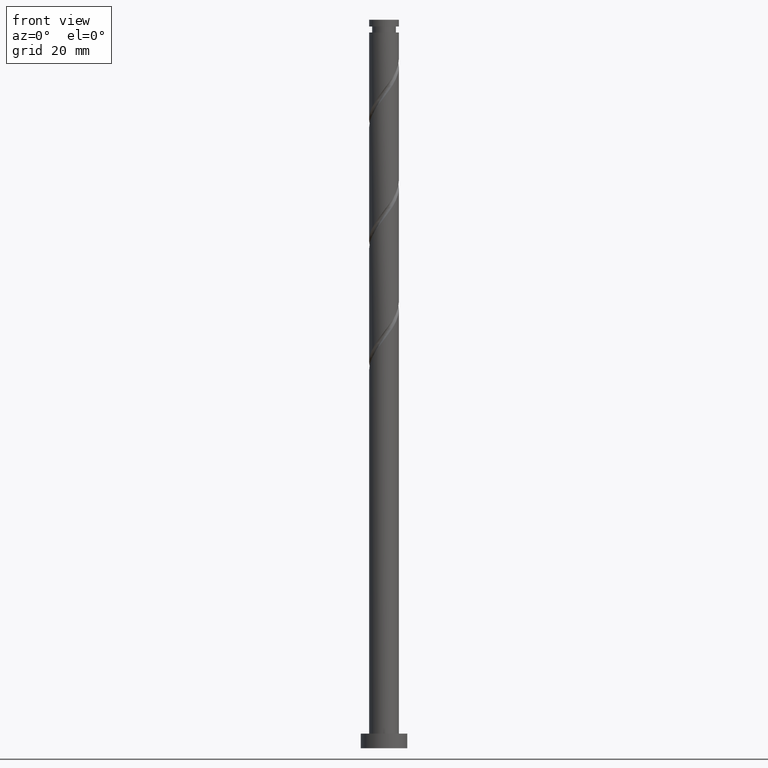
[diagram: clean part render]
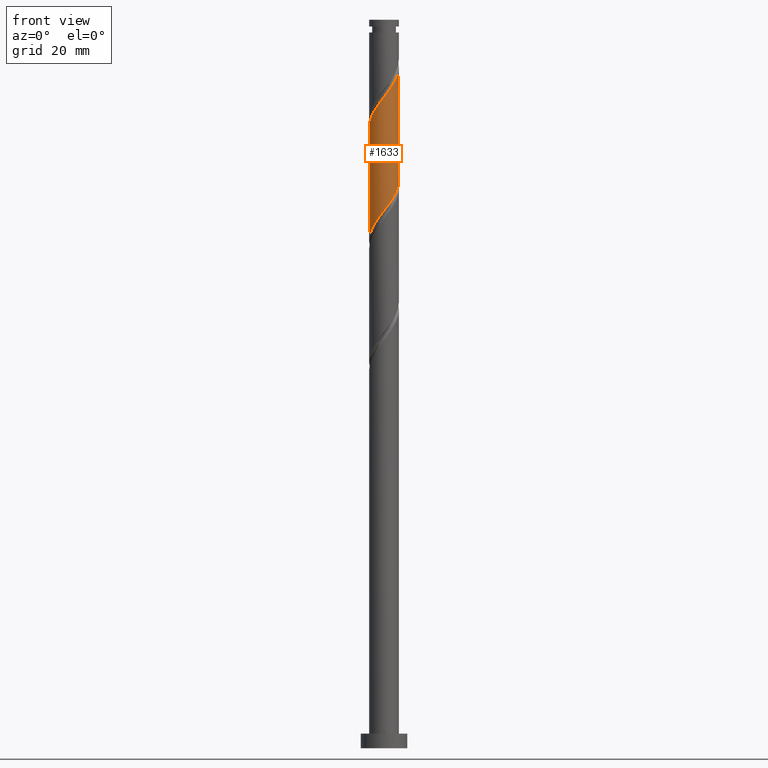
[diagram: same view with one face highlighted and labeled with its STEP entity id]
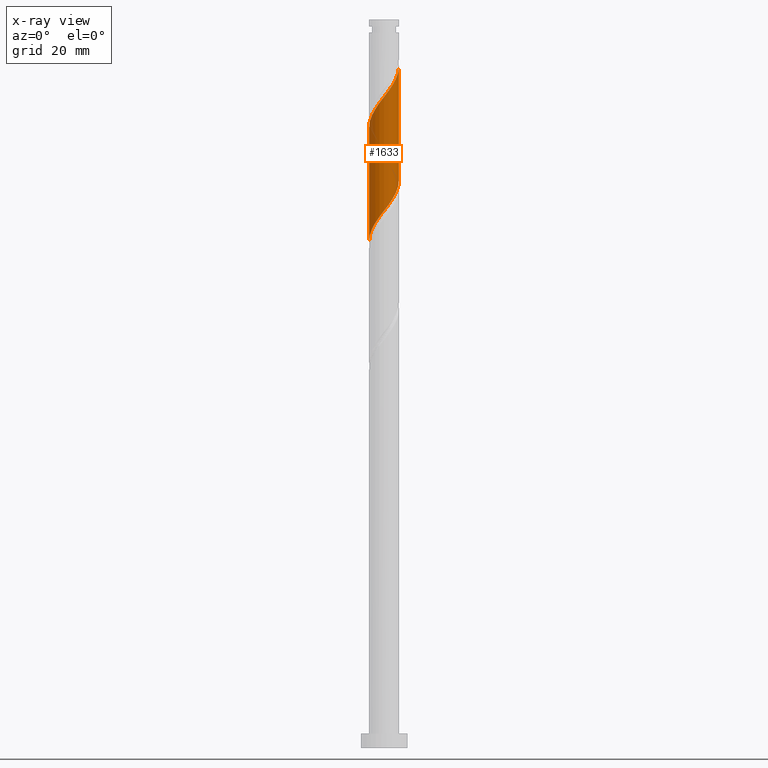
[diagram: x-ray of the same camera — body ghosted, the highlighted face saturated]
A machine part, front view. The second image highlights one B-rep face of the part: STEP entity #1633.
The next image is the same camera in x-ray: the body ghosted, the highlighted face saturated — about 0% of this face is hidden behind the body in this view.
In plain terms, the highlighted cylindrical surface (edge-blend (fillet) strip) has radius 5.1 mm, axis along (-0, -0, -1).
Its self-contained STEP definition (entity closure, byte-faithful):
#3 = CARTESIAN_POINT ( 'NONE',  ( -2.554633079098586279, -4.414051407853715858, 220.0052858552500084 ) ) ;
#35 = EDGE_LOOP ( 'NONE', ( #883, #595, #851, #866 ) ) ;
#48 = CARTESIAN_POINT ( 'NONE',  ( -5.033095136840517902, -0.8233792221767159969, 175.1334909834551468 ) ) ;
#55 = CARTESIAN_POINT ( 'NONE',  ( -3.701410836239909852, -3.562728028154290794, 179.1399012398653952 ) ) ;
#78 = CARTESIAN_POINT ( 'NONE',  ( -2.181496098819616591, -4.609888802437081878, 181.5437473937115556 ) ) ;
#98 = CARTESIAN_POINT ( 'NONE',  ( -5.100000000000001421, 0.000000000000000000, 250.0000000000000000 ) ) ;
#147 = CARTESIAN_POINT ( 'NONE',  ( 4.689794993926371447, -2.003951824506580159, 231.2232345731987095 ) ) ;
#173 = CARTESIAN_POINT ( 'NONE',  ( -5.034708694974688648, -1.022341204283935712, 214.3963114962756435 ) ) ;
#182 = CARTESIAN_POINT ( 'NONE',  ( 0.4080201137038932391, -5.121229614852623513, 224.0116961116602283 ) ) ;
#203 = VECTOR ( 'NONE', #1481, 1000.000000000000000 ) ;
#211 = CARTESIAN_POINT ( 'NONE',  ( -5.099999999999998757, 4.217574666386874631E-15, 174.0575667055008182 ) ) ;
#258 = DIRECTION ( 'NONE',  ( -0.000000000000000000, -0.000000000000000000, -1.000000000000000000 ) ) ;
#260 = EDGE_CURVE ( 'NONE', #338, #1412, #420, .T. ) ;
#320 = CARTESIAN_POINT ( 'NONE',  ( -5.083890084957959132, -0.4050451876843533805, 213.5950294449936280 ) ) ;
#337 = CARTESIAN_POINT ( 'NONE',  ( 1.424048439806746780, -4.897150808488948570, 186.3514397014038479 ) ) ;
#338 = VERTEX_POINT ( 'NONE', #1206 ) ;
#339 = CARTESIAN_POINT ( 'NONE',  ( 5.100000000000001421, 6.245698675651502811E-16, 250.0000000000000000 ) ) ;
#387 = LINE ( 'NONE', #98, #1654 ) ;
#417 = DIRECTION ( 'NONE',  ( -1.000000000000000000, 0.000000000000000000, 0.000000000000000000 ) ) ;
#420 =( BOUNDED_CURVE ( )  B_SPLINE_CURVE ( 2, ( #468, #1040, #763, #1329, #900, #1212, #1624, #779, #786, #1055, #1071, #1596, #337, #1354, #1321, #1480, #1345, #482, #78, #893, #1464, #55, #636, #1049, #1197, #1456, #48, #756, #211 ),
 .UNSPECIFIED., .F., .T. ) 
 B_SPLINE_CURVE_WITH_KNOTS ( ( 3, 2, 2, 2, 2, 2, 2, 2, 2, 2, 2, 2, 2, 2, 3 ),
 ( 0.5545271625973832164, 0.5576923076923077094, 0.5673076923076922906, 0.5769230769230768718, 0.5865384615384615641, 0.5961538461538461453, 0.6057692307692307265, 0.6153846153846154188, 0.6250000000000000000, 0.6346153846153845812, 0.6442307692307692735, 0.6538461538461538547, 0.6634615384615384359, 0.6730769230769231282, 0.6795271625973834384 ),
 .UNSPECIFIED. ) 
 CURVE ( )  GEOMETRIC_REPRESENTATION_ITEM ( )  RATIONAL_B_SPLINE_CURVE ( ( 0.9061636035682766321, 0.9069090390690652814, 0.9090909090909219392, 0.9024626128164254801, 0.9090909090909219392, 0.9024626128164254801, 0.9090909090909219392, 0.9024626128164254801, 0.9090909090909219392, 0.9024626128164254801, 0.9090909090909219392, 0.9024626128164254801, 0.9090909090909219392, 0.9024626128164254801, 0.9090909090909219392, 0.9024626128164254801, 0.9090909090909219392, 0.9024626128164254801, 0.9090909090909219392, 0.9024626128164254801, 0.9090909090909219392, 0.9024626128164254801, 0.9090909090909219392, 0.9024626128164254801, 0.9090909090909219392, 0.9024626128164254801, 0.9090909090909219392, 0.9046444828382818049, 0.9061636035682767432 ) ) 
 REPRESENTATION_ITEM ( '' )  );
#435 = CARTESIAN_POINT ( 'NONE',  ( 5.100000000000010303, 3.858632141587965718E-15, 233.9017229537170977 ) ) ;
#454 = CARTESIAN_POINT ( 'NONE',  ( -1.424048439806750999, -4.897150808488956564, 221.6078499578141816 ) ) ;
#461 = CARTESIAN_POINT ( 'NONE',  ( 3.701410836239915625, -3.562728028154298343, 228.8193884193525491 ) ) ;
#468 = CARTESIAN_POINT ( 'NONE',  ( 5.100000000000001421, -6.161846675714157688E-15, 194.8909000388341610 ) ) ;
#482 = CARTESIAN_POINT ( 'NONE',  ( -1.621754257993614612, -4.874770385147385809, 182.3450294449935427 ) ) ;
#511 = CARTESIAN_POINT ( 'NONE',  ( -5.100000000000009415, 2.632245181858457100E-15, 213.0683896203837548 ) ) ;
#595 = ORIENTED_EDGE ( 'NONE', *, *, #724, .F. ) ;
#603 = CARTESIAN_POINT ( 'NONE',  ( -4.643746946077720317, -2.197518482749194479, 215.9988755988396747 ) ) ;
#611 = CARTESIAN_POINT ( 'NONE',  ( -3.090595955085196245, -4.103862792984375396, 219.2040038039679644 ) ) ;
#636 = CARTESIAN_POINT ( 'NONE',  ( -4.073941012676409734, -3.068062030864616929, 178.3386191885833227 ) ) ;
#676 = DIRECTION ( 'NONE',  ( -0.000000000000000000, -0.000000000000000000, -1.000000000000000000 ) ) ;
#704 = VERTEX_POINT ( 'NONE', #435 ) ;
#724 = EDGE_CURVE ( 'NONE', #1198, #704, #986, .T. ) ;
#735 = CARTESIAN_POINT ( 'NONE',  ( -3.536751729546634415, -3.674423383818063993, 218.4027217526859204 ) ) ;
#743 = CARTESIAN_POINT ( 'NONE',  ( 1.014887185848754259, -4.998000000000007326, 224.8129781629423576 ) ) ;
#756 = CARTESIAN_POINT ( 'NONE',  ( -5.100000000000003197, -0.4144078365389231577, 174.5972674428492439 ) ) ;
#763 = CARTESIAN_POINT ( 'NONE',  ( 5.083890084957950251, -0.4050451876843581545, 194.3642602142244300 ) ) ;
#765 = AXIS2_PLACEMENT_3D ( 'NONE', #1548, #258, #417 ) ;
#779 = CARTESIAN_POINT ( 'NONE',  ( 3.982907504008061927, -3.244983974651748593, 190.3578499578140679 ) ) ;
#786 = CARTESIAN_POINT ( 'NONE',  ( 3.536751729546626866, -3.674423383818059108, 189.5565679065321092 ) ) ;
#837 = CARTESIAN_POINT ( 'NONE',  ( 4.933118798739824840, -1.434507615438213257, 232.0245166244806967 ) ) ;
#846 = CARTESIAN_POINT ( 'NONE',  ( -4.839227820526207147, -1.609929843516564985, 215.1975935475576875 ) ) ;
#850 = EDGE_CURVE ( 'NONE', #704, #338, #895, .T. ) ;
#851 = ORIENTED_EDGE ( 'NONE', *, *, #1264, .T. ) ;
#855 = CARTESIAN_POINT ( 'NONE',  ( 5.100000000000010303, 3.858632141587965718E-15, 233.9017229537170977 ) ) ;
#866 = ORIENTED_EDGE ( 'NONE', *, *, #260, .F. ) ;
#867 = CARTESIAN_POINT ( 'NONE',  ( -5.100000000000012079, -0.2028429647175044870, 213.3325605360167003 ) ) ;
#878 = CARTESIAN_POINT ( 'NONE',  ( -0.8294266765015253506, -5.070061594254859472, 222.4091320090960835 ) ) ;
#883 = ORIENTED_EDGE ( 'NONE', *, *, #850, .F. ) ;
#893 = CARTESIAN_POINT ( 'NONE',  ( -2.741237939645617683, -4.345007219726778835, 180.7424653424294547 ) ) ;
#895 = LINE ( 'NONE', #339, #203 ) ;
#900 = CARTESIAN_POINT ( 'NONE',  ( 4.839227820526198265, -1.609929843516566095, 192.7616961116602567 ) ) ;
#986 =( BOUNDED_CURVE ( )  B_SPLINE_CURVE ( 2, ( #1436, #867, #320, #173, #846, #603, #1294, #1738, #735, #611, #3, #1728, #454, #878, #1445, #182, #743, #1304, #1169, #1139, #1418, #461, #1586, #1034, #147, #837, #1707, #998, #855 ),
 .UNSPECIFIED., .F., .T. ) 
 B_SPLINE_CURVE_WITH_KNOTS ( ( 3, 2, 2, 2, 2, 2, 2, 2, 2, 2, 2, 2, 2, 2, 3 ),
 ( 0.5545271625973831053, 0.5576923076923077094, 0.5673076923076922906, 0.5769230769230768718, 0.5865384615384615641, 0.5961538461538461453, 0.6057692307692308376, 0.6153846153846154188, 0.6250000000000000000, 0.6346153846153845812, 0.6442307692307691624, 0.6538461538461538547, 0.6634615384615384359, 0.6730769230769231282, 0.6795271625973833274 ),
 .UNSPECIFIED. ) 
 CURVE ( )  GEOMETRIC_REPRESENTATION_ITEM ( )  RATIONAL_B_SPLINE_CURVE ( ( 0.9061636035682827384, 0.9069090390690712766, 0.9090909090909279344, 0.9024626128164316974, 0.9090909090909279344, 0.9024626128164316974, 0.9090909090909279344, 0.9024626128164316974, 0.9090909090909279344, 0.9024626128164316974, 0.9090909090909279344, 0.9024626128164316974, 0.9090909090909279344, 0.9024626128164316974, 0.9090909090909279344, 0.9024626128164316974, 0.9090909090909279344, 0.9024626128164316974, 0.9090909090909279344, 0.9024626128164316974, 0.9090909090909279344, 0.9024626128164316974, 0.9090909090909279344, 0.9024626128164316974, 0.9090909090909279344, 0.9024626128164316974, 0.9090909090909279344, 0.9046444828382881331, 0.9061636035682828494 ) ) 
 REPRESENTATION_ITEM ( '' )  );
#998 = CARTESIAN_POINT ( 'NONE',  ( 5.100000000000009415, -0.4144078365389325391, 233.3620222163687856 ) ) ;
#1034 = CARTESIAN_POINT ( 'NONE',  ( 4.446471189112913613, -2.573396033574950170, 230.4219525219166371 ) ) ;
#1040 = CARTESIAN_POINT ( 'NONE',  ( 5.100000000000000533, -0.2028429647175158668, 194.6267291232012724 ) ) ;
#1049 = CARTESIAN_POINT ( 'NONE',  ( -4.446471189112907396, -2.573396033574942621, 177.5373371373012787 ) ) ;
#1055 = CARTESIAN_POINT ( 'NONE',  ( 3.090595955085186919, -4.103862792984370955, 188.7552858552499799 ) ) ;
#1071 = CARTESIAN_POINT ( 'NONE',  ( 2.554633079098580062, -4.414051407853709641, 187.9540038039679359 ) ) ;
#1139 = CARTESIAN_POINT ( 'NONE',  ( 2.741237939645619015, -4.345007219726788605, 227.2168243167884043 ) ) ;
#1169 = CARTESIAN_POINT ( 'NONE',  ( 2.181496098819615703, -4.609888802437091648, 226.4155422655065024 ) ) ;
#1197 = CARTESIAN_POINT ( 'NONE',  ( -4.689794993926362565, -2.003951824506575274, 176.7360550860192632 ) ) ;
#1198 = VERTEX_POINT ( 'NONE', #511 ) ;
#1206 = CARTESIAN_POINT ( 'NONE',  ( 5.100000000000001421, -6.161846675714157688E-15, 194.8909000388341894 ) ) ;
#1212 = CARTESIAN_POINT ( 'NONE',  ( 4.643746946077711435, -2.197518482749192703, 191.9604140603781559 ) ) ;
#1238 = FACE_OUTER_BOUND ( 'NONE', #35, .T. ) ;
#1264 = EDGE_CURVE ( 'NONE', #1198, #1412, #387, .T. ) ;
#1291 = CARTESIAN_POINT ( 'NONE',  ( -5.099999999999998757, 4.217574666386874631E-15, 174.0575667055008182 ) ) ;
#1294 = CARTESIAN_POINT ( 'NONE',  ( -4.313327225042898228, -2.721251228700472868, 216.8001576501217755 ) ) ;
#1304 = CARTESIAN_POINT ( 'NONE',  ( 1.621754257993612836, -4.874770385147393803, 225.6142602142243163 ) ) ;
#1321 = CARTESIAN_POINT ( 'NONE',  ( 0.2107032813988115039, -5.095645604553733499, 184.7488755988397315 ) ) ;
#1329 = CARTESIAN_POINT ( 'NONE',  ( 5.034708694974681542, -1.022341204283936156, 193.5629781629423007 ) ) ;
#1345 = CARTESIAN_POINT ( 'NONE',  ( -1.014887185848754703, -4.998000000000000220, 183.1463114962756151 ) ) ;
#1354 = CARTESIAN_POINT ( 'NONE',  ( 0.8294266765015200216, -5.070061594254849702, 185.5501576501216903 ) ) ;
#1412 = VERTEX_POINT ( 'NONE', #1291 ) ;
#1418 = CARTESIAN_POINT ( 'NONE',  ( 3.221324387942768652, -3.953867623940544807, 228.0181063680705051 ) ) ;
#1436 = CARTESIAN_POINT ( 'NONE',  ( -5.100000000000009415, 2.632245181858457100E-15, 213.0683896203837548 ) ) ;
#1445 = CARTESIAN_POINT ( 'NONE',  ( -0.2107032813988162778, -5.095645604553743269, 223.2104140603782412 ) ) ;
#1456 = CARTESIAN_POINT ( 'NONE',  ( -4.933118798739816846, -1.434507615438206596, 175.9347730347371055 ) ) ;
#1464 = CARTESIAN_POINT ( 'NONE',  ( -3.221324387942764211, -3.953867623940536369, 179.9411832911474107 ) ) ;
#1480 = CARTESIAN_POINT ( 'NONE',  ( -0.4080201137038967918, -5.121229614852613743, 183.9475935475576875 ) ) ;
#1481 = DIRECTION ( 'NONE',  ( -0.000000000000000000, -0.000000000000000000, -1.000000000000000000 ) ) ;
#1548 = CARTESIAN_POINT ( 'NONE',  ( 0.000000000000000000, 0.000000000000000000, 250.0000000000000000 ) ) ;
#1586 = CARTESIAN_POINT ( 'NONE',  ( 4.073941012676415063, -3.068062030864625811, 229.6206704706346784 ) ) ;
#1596 = CARTESIAN_POINT ( 'NONE',  ( 2.018670203111970984, -4.724240022723048327, 187.1527217526858635 ) ) ;
#1624 = CARTESIAN_POINT ( 'NONE',  ( 4.313327225042888458, -2.721251228700471536, 191.1591320090961972 ) ) ;
#1633 = ADVANCED_FACE ( 'NONE', ( #1238 ), #1797, .T. ) ;
#1654 = VECTOR ( 'NONE', #676, 1000.000000000000000 ) ;
#1707 = CARTESIAN_POINT ( 'NONE',  ( 5.033095136840526784, -0.8233792221767206598, 232.8257986757628544 ) ) ;
#1728 = CARTESIAN_POINT ( 'NONE',  ( -2.018670203111975425, -4.724240022723055432, 220.8065679065320523 ) ) ;
#1738 = CARTESIAN_POINT ( 'NONE',  ( -3.982907504008070809, -3.244983974651750813, 217.6014397014037343 ) ) ;
#1797 = CYLINDRICAL_SURFACE ( 'NONE', #765, 5.100000000000001421 ) ;